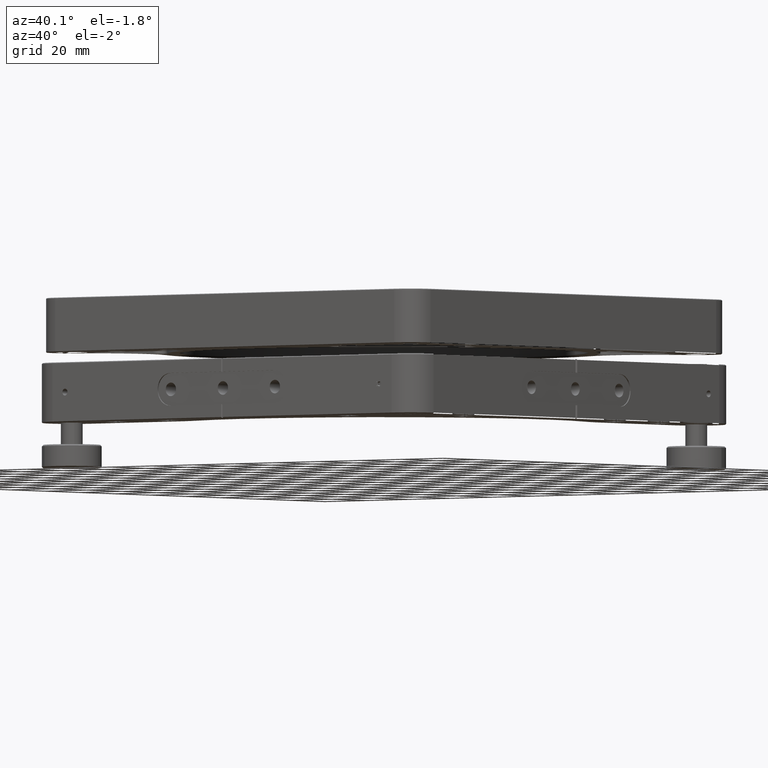
[diagram: clean part render]
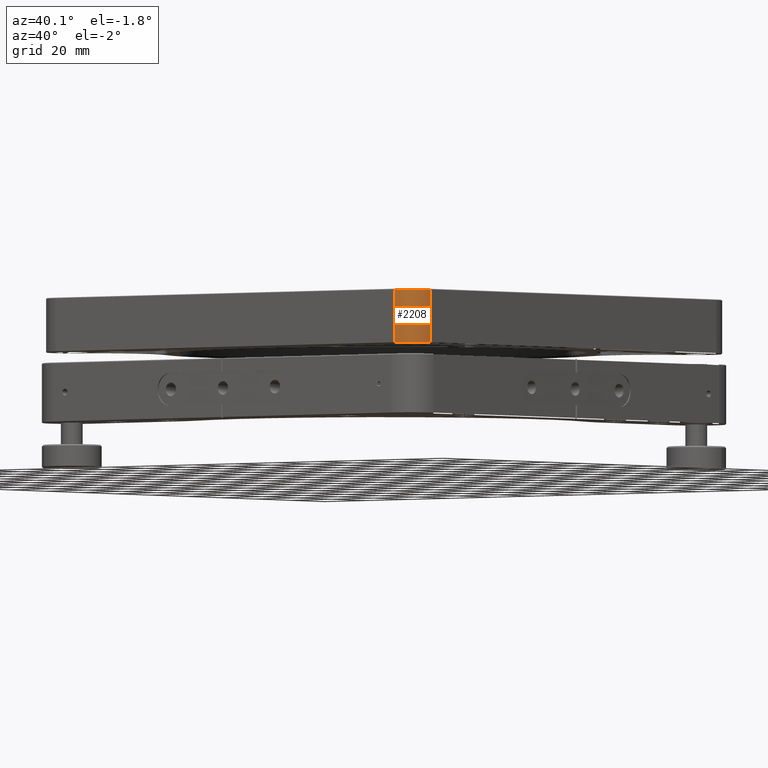
[diagram: same view with one face highlighted and labeled with its STEP entity id]
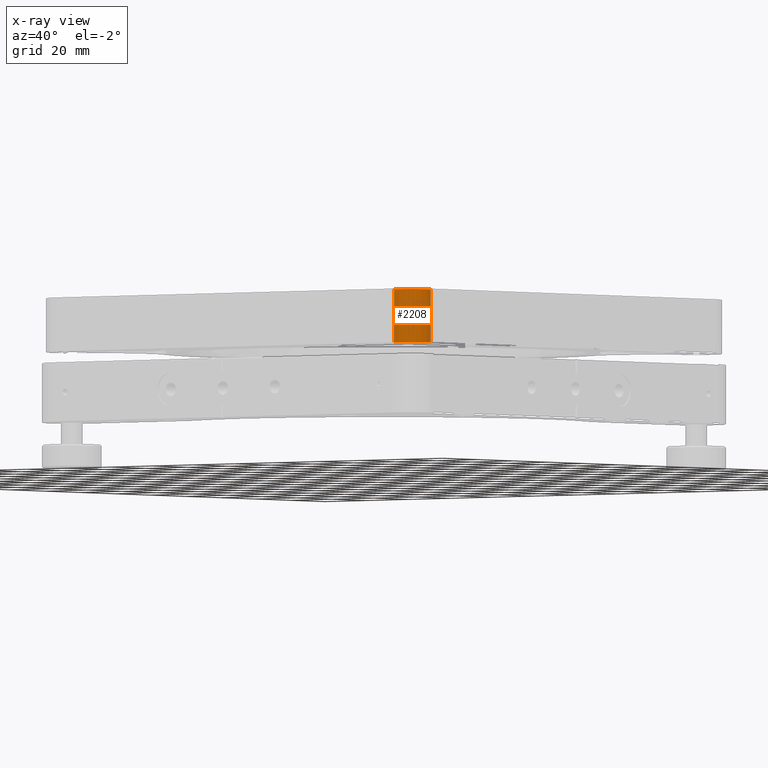
[diagram: x-ray of the same camera — body ghosted, the highlighted face saturated]
A machine part, auxiliary view. The second image highlights one B-rep face of the part: STEP entity #2208.
The next image is the same camera in x-ray: the body ghosted, the highlighted face saturated — about 0% of this face is hidden behind the body in this view.
In plain terms, the highlighted cylindrical surface (edge-blend (fillet) strip) has radius 9.5 mm, axis along (-0, 0, -1).
Its self-contained STEP definition (entity closure, byte-faithful):
#521 = LINE ( 'NONE', #8036, #16698 ) ;
#988 = AXIS2_PLACEMENT_3D ( 'NONE', #16300, #2766, #4152 ) ;
#1037 = EDGE_LOOP ( 'NONE', ( #8738, #7153, #13310, #19023 ) ) ;
#1525 = VECTOR ( 'NONE', #3017, 1000.000000000000000 ) ;
#1737 = CARTESIAN_POINT ( 'NONE',  ( 91.00000000000041211, -81.50000000000038369, 34.91318352574927530 ) ) ;
#2208 = ADVANCED_FACE ( 'NONE', ( #4347 ), #19264, .T. ) ;
#2766 = DIRECTION ( 'NONE',  ( 1.460576560598801204E-21, -3.273491101935708560E-36, 1.000000000000000000 ) ) ;
#3017 = DIRECTION ( 'NONE',  ( -1.460576560598801204E-21, 3.273491101935708560E-36, -1.000000000000000000 ) ) ;
#4085 = DIRECTION ( 'NONE',  ( 0.000000000000000000, 1.000000000000000000, 0.000000000000000000 ) ) ;
#4152 = DIRECTION ( 'NONE',  ( 0.000000000000000000, 1.000000000000000000, 0.000000000000000000 ) ) ;
#4347 = FACE_OUTER_BOUND ( 'NONE', #1037, .T. ) ;
#4802 = LINE ( 'NONE', #1737, #1525 ) ;
#5013 = EDGE_CURVE ( 'NONE', #12586, #17767, #521, .T. ) ;
#5644 = CARTESIAN_POINT ( 'NONE',  ( 91.00000000000041211, -81.50000000000038369, 34.66318352574926109 ) ) ;
#5743 = DIRECTION ( 'NONE',  ( 0.000000000000000000, -1.000000000000000000, 0.000000000000000000 ) ) ;
#6980 = CIRCLE ( 'NONE', #988, 9.500000000000063949 ) ;
#7029 = DIRECTION ( 'NONE',  ( -1.460576560598801204E-21, 3.273491101935708560E-36, -1.000000000000000000 ) ) ;
#7153 = ORIENTED_EDGE ( 'NONE', *, *, #19365, .T. ) ;
#7169 = CARTESIAN_POINT ( 'NONE',  ( 91.00000000000041211, -81.50000000000038369, 15.16318352574926642 ) ) ;
#7378 = VERTEX_POINT ( 'NONE', #5644 ) ;
#8036 = CARTESIAN_POINT ( 'NONE',  ( 81.50000000000041211, -91.00000000000035527, 34.91318352574927530 ) ) ;
#8168 = EDGE_CURVE ( 'NONE', #7378, #9187, #4802, .T. ) ;
#8539 = CARTESIAN_POINT ( 'NONE',  ( 81.50000000000041211, -81.50000000000038369, 34.66318352574926109 ) ) ;
#8738 = ORIENTED_EDGE ( 'NONE', *, *, #5013, .F. ) ;
#8803 = CARTESIAN_POINT ( 'NONE',  ( 81.50000000000041211, -81.50000000000038369, 34.91318352574927530 ) ) ;
#9187 = VERTEX_POINT ( 'NONE', #7169 ) ;
#9263 = AXIS2_PLACEMENT_3D ( 'NONE', #8539, #11697, #4085 ) ;
#9718 = DIRECTION ( 'NONE',  ( 1.460576560598801204E-21, -3.273491101935708560E-36, 1.000000000000000000 ) ) ;
#10673 = CARTESIAN_POINT ( 'NONE',  ( 81.50000000000041211, -91.00000000000035527, 34.66318352574926109 ) ) ;
#11252 = CARTESIAN_POINT ( 'NONE',  ( 81.50000000000041211, -91.00000000000035527, 15.16318352574926642 ) ) ;
#11697 = DIRECTION ( 'NONE',  ( -1.460576560598801204E-21, 3.273491101935708560E-36, -1.000000000000000000 ) ) ;
#12586 = VERTEX_POINT ( 'NONE', #11252 ) ;
#13310 = ORIENTED_EDGE ( 'NONE', *, *, #8168, .F. ) ;
#14503 = EDGE_CURVE ( 'NONE', #7378, #17767, #17765, .T. ) ;
#16300 = CARTESIAN_POINT ( 'NONE',  ( 81.50000000000041211, -81.50000000000038369, 15.16318352574926642 ) ) ;
#16383 = AXIS2_PLACEMENT_3D ( 'NONE', #8803, #7029, #5743 ) ;
#16698 = VECTOR ( 'NONE', #9718, 1000.000000000000000 ) ;
#17765 = CIRCLE ( 'NONE', #9263, 9.500000000000063949 ) ;
#17767 = VERTEX_POINT ( 'NONE', #10673 ) ;
#19023 = ORIENTED_EDGE ( 'NONE', *, *, #14503, .T. ) ;
#19264 = CYLINDRICAL_SURFACE ( 'NONE', #16383, 9.500000000000063949 ) ;
#19365 = EDGE_CURVE ( 'NONE', #12586, #9187, #6980, .T. ) ;